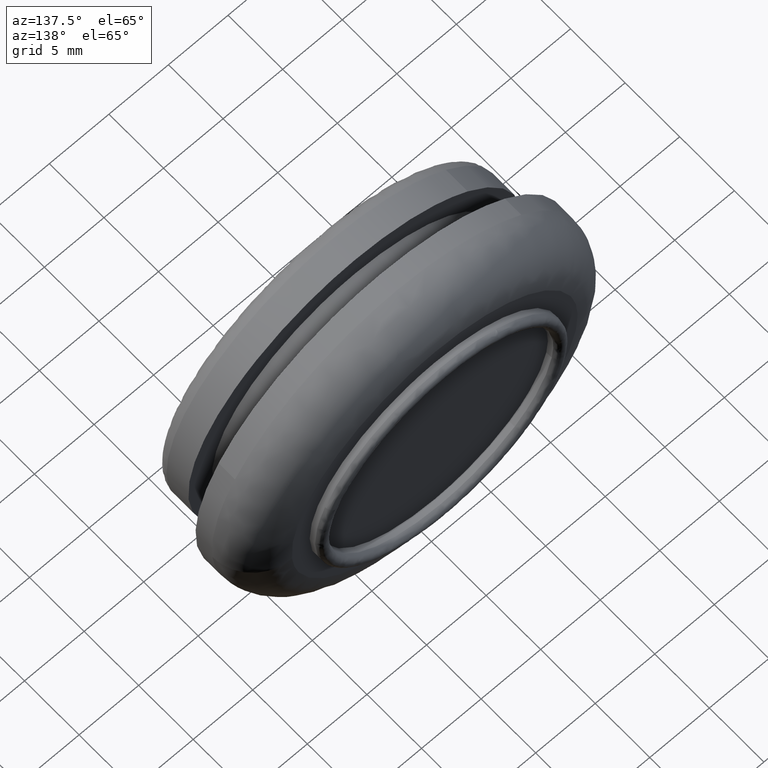
[diagram: clean part render]
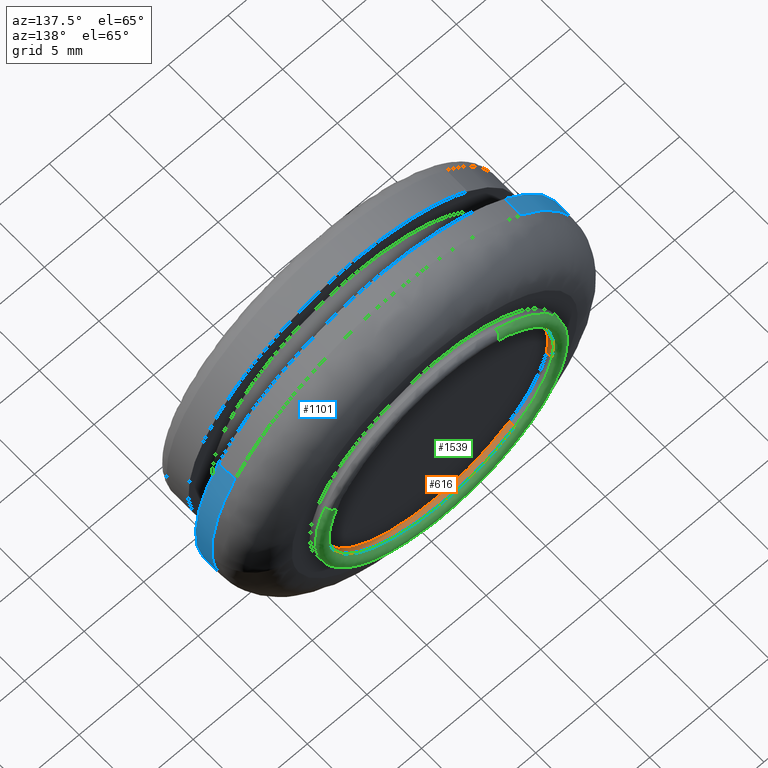
[diagram: same view with three faces highlighted in distinct colors, each labeled with its STEP entity id]
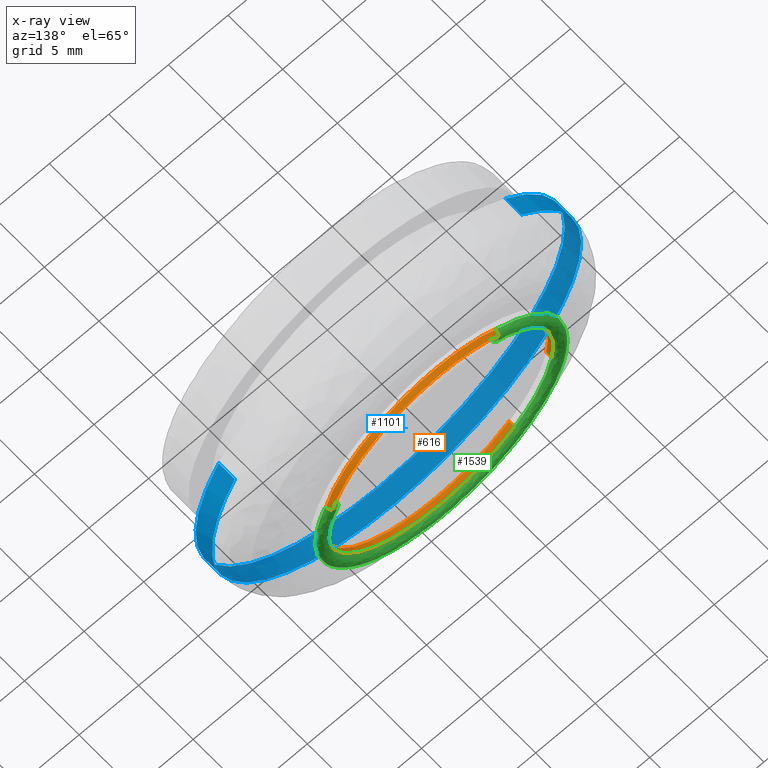
[diagram: x-ray of the same camera — body ghosted, the three highlighted faces saturated]
A machine part, auxiliary view with three faces highlighted in distinct colors.
The next image is the same camera in x-ray (body ghosted, the three faces saturated) — at least one of them is partly hidden behind the body in this view.
Their STEP definitions:

[orange] entity #616 — the highlighted face is a freeform B-spline surface patch.
#446=CARTESIAN_POINT('',(-6.256447145453175,10.812500000000002,-7.148906847634175));
#447=CARTESIAN_POINT('',(-2.870213776890409,10.812500000000002,-10.112407498029965));
#448=CARTESIAN_POINT('',(1.567952255676439,10.812500000000000,-9.369713214603696));
#449=CARTESIAN_POINT('',(10.937665470280134,10.812500000000002,-7.801760958927257));
#450=CARTESIAN_POINT('',(9.369713214603696,10.812500000000000,1.567952255676439));
#451=CARTESIAN_POINT('',(7.801760958927257,10.812500000000002,10.937665470280134));
#452=CARTESIAN_POINT('',(-1.567952255676439,10.812500000000000,9.369713214603696));
#453=CARTESIAN_POINT('',(-10.937665470280134,10.812500000000002,7.801760958927257));
#454=CARTESIAN_POINT('',(-9.369713214603696,10.812500000000000,-1.567952255676439));
#455=CARTESIAN_POINT('',(-6.256447145453175,10.287187499999998,-7.148906847634175));
#456=CARTESIAN_POINT('',(-2.870213776890409,10.287187499999998,-10.112407498029965));
#457=CARTESIAN_POINT('',(1.567952255676439,10.287187500000000,-9.369713214603696));
#458=CARTESIAN_POINT('',(10.937665470280134,10.287187499999998,-7.801760958927257));
#459=CARTESIAN_POINT('',(9.369713214603696,10.287187500000000,1.567952255676439));
#460=CARTESIAN_POINT('',(7.801760958927257,10.287187499999998,10.937665470280134));
#461=CARTESIAN_POINT('',(-1.567952255676439,10.287187500000000,9.369713214603696));
#462=CARTESIAN_POINT('',(-10.937665470280134,10.287187499999998,7.801760958927257));
#463=CARTESIAN_POINT('',(-9.369713214603696,10.287187500000000,-1.567952255676439));
#471=(BOUNDED_SURFACE()B_SPLINE_SURFACE(2,1,((#446,#455),(#447,#456),(#448,#457),(#449,#458),(#450,#459),(#451,#460),(#452,#461),(#453,#462),(#454,#463)),.UNSPECIFIED.,.F.,.F.,.U.)B_SPLINE_SURFACE_WITH_KNOTS((3,2,2,2,3),(2,2),(0.0,8.814464607299462,24.554579977477069,40.294695347654688,56.034810717832293),(0.0,1.0),.UNSPECIFIED.)GEOMETRIC_REPRESENTATION_ITEM()RATIONAL_B_SPLINE_SURFACE(((0.855662221768731,0.855662221768731),(0.835979797464467,0.835979797464467),(1.0,1.0),(0.707106781186548,0.707106781186548),(1.0,1.0),(0.707106781186548,0.707106781186548),(1.0,1.0),(0.707106781186548,0.707106781186548),(1.0,1.0)))REPRESENTATION_ITEM('')SURFACE());
#472=CARTESIAN_POINT('',(-6.256446294445501,10.799999999999841,-7.148907592403042));
#473=VERTEX_POINT('',#472);
#474=CARTESIAN_POINT('',(0.0,10.800000000000001,-9.500000000000000));
#475=VERTEX_POINT('',#474);
#476=CARTESIAN_POINT('',(-6.256446294445501,10.799999999999839,-7.148907592403042));
#477=CARTESIAN_POINT('',(-3.569978358481220,10.800000000000001,-9.500000000000000));
#478=CARTESIAN_POINT('',(0.0,10.800000000000001,-9.500000000000000));
#486=(BOUNDED_CURVE()B_SPLINE_CURVE(2,(#476,#477,#478),.UNSPECIFIED.,.F.,.U.)B_SPLINE_CURVE_WITH_KNOTS((3,3),(0.885034283933024,1.0),.UNSPECIFIED.)CURVE()GEOMETRIC_REPRESENTATION_ITEM()RATIONAL_B_SPLINE_CURVE((0.854497086490057,0.865309285471800,1.0))REPRESENTATION_ITEM(''));
#487=EDGE_CURVE('',#473,#475,#486,.T.);
#488=ORIENTED_EDGE('',*,*,#487,.F.);
#489=CARTESIAN_POINT('',(-6.256446304293370,10.300000000000001,-7.148907583784572));
#490=VERTEX_POINT('',#489);
#491=CARTESIAN_POINT('',(-6.256446294445501,10.799999999999841,-7.148907592403042));
#492=CARTESIAN_POINT('',(-6.256446304293370,10.300000000000001,-7.148907583784572));
#493=QUASI_UNIFORM_CURVE('',1,(#491,#492),.UNSPECIFIED.,.F.,.U.);
#494=EDGE_CURVE('',#473,#490,#493,.T.);
#495=ORIENTED_EDGE('',*,*,#494,.T.);
#496=CARTESIAN_POINT('',(0.0,10.300000000000001,-9.500000000000000));
#497=VERTEX_POINT('',#496);
#498=CARTESIAN_POINT('',(-6.256446304293369,10.300000000000001,-7.148907583784571));
#499=CARTESIAN_POINT('',(-3.569978365948525,10.300000000000001,-9.500000000000000));
#500=CARTESIAN_POINT('',(0.0,10.300000000000001,-9.500000000000000));
#508=(BOUNDED_CURVE()B_SPLINE_CURVE(2,(#498,#499,#500),.UNSPECIFIED.,.F.,.U.)B_SPLINE_CURVE_WITH_KNOTS((3,3),(0.885034283724941,1.0),.UNSPECIFIED.)CURVE()GEOMETRIC_REPRESENTATION_ITEM()RATIONAL_B_SPLINE_CURVE((0.854497086450918,0.865309285228015,1.0))REPRESENTATION_ITEM(''));
#509=EDGE_CURVE('',#490,#497,#508,.T.);
#510=ORIENTED_EDGE('',*,*,#509,.T.);
#511=CARTESIAN_POINT('',(0.0,10.300000000000001,9.500000000000000));
#512=VERTEX_POINT('',#511);
#513=CARTESIAN_POINT('',(0.0,10.300000000000001,-9.500000000000000));
#514=CARTESIAN_POINT('',(9.500000000000000,10.300000000000001,-9.500000000000000));
#515=CARTESIAN_POINT('',(9.500000000000000,10.300000000000001,-3.061516E-016));
#516=CARTESIAN_POINT('',(9.500000000000000,10.300000000000001,9.500000000000000));
#517=CARTESIAN_POINT('',(0.0,10.300000000000001,9.500000000000000));
#525=(BOUNDED_CURVE()B_SPLINE_CURVE(2,(#513,#514,#515,#516,#517),.UNSPECIFIED.,.F.,.U.)B_SPLINE_CURVE_WITH_KNOTS((3,2,3),(0.0,0.250000000000000,0.500000000000000),.UNSPECIFIED.)CURVE()GEOMETRIC_REPRESENTATION_ITEM()RATIONAL_B_SPLINE_CURVE((1.0,0.707106781186548,1.0,0.707106781186548,1.0))REPRESENTATION_ITEM(''));
#526=EDGE_CURVE('',#497,#512,#525,.T.);
#527=ORIENTED_EDGE('',*,*,#526,.T.);
#528=CARTESIAN_POINT('',(-9.369713348044670,10.300000000000001,-1.567951458264204));
#529=VERTEX_POINT('',#528);
#530=CARTESIAN_POINT('',(0.0,10.300000000000001,9.500000000000000));
#531=CARTESIAN_POINT('',(-9.500000000000000,10.300000000000001,9.500000000000000));
#532=CARTESIAN_POINT('',(-9.500000000000000,10.300000000000001,-3.061516E-016));
#533=CARTESIAN_POINT('',(-9.499999999999998,10.300000000000001,-0.789388312266063));
#534=CARTESIAN_POINT('',(-9.369713348044670,10.300000000000001,-1.567951458264205));
#542=(BOUNDED_CURVE()B_SPLINE_CURVE(2,(#530,#531,#532,#533,#534),.UNSPECIFIED.,.F.,.U.)B_SPLINE_CURVE_WITH_KNOTS((3,2,3),(0.500000000000000,0.750000000000000,0.778400489927011),.UNSPECIFIED.)CURVE()GEOMETRIC_REPRESENTATION_ITEM()RATIONAL_B_SPLINE_CURVE((1.0,0.707106781186548,1.0,0.966726756357595,0.941013324082431))REPRESENTATION_ITEM(''));
#543=EDGE_CURVE('',#512,#529,#542,.T.);
#544=ORIENTED_EDGE('',*,*,#543,.T.);
#545=CARTESIAN_POINT('',(-9.369715507766498,10.799999999999979,-1.567938552152767));
#546=VERTEX_POINT('',#545);
#547=CARTESIAN_POINT('',(-9.369715507766498,10.799999999999979,-1.567938552152767));
#548=CARTESIAN_POINT('',(-9.369713348044670,10.300000000000001,-1.567951458264204));
#549=QUASI_UNIFORM_CURVE('',1,(#547,#548),.UNSPECIFIED.,.F.,.U.);
#550=EDGE_CURVE('',#546,#529,#549,.T.);
#551=ORIENTED_EDGE('',*,*,#550,.F.);
#552=CARTESIAN_POINT('',(-4.211950693794776,10.799999999954050,8.515249341800960));
#553=VERTEX_POINT('',#552);
#554=CARTESIAN_POINT('',(-4.211950693794776,10.799999999954053,8.515249341800960));
#555=CARTESIAN_POINT('',(-9.499999999999998,10.799999999999999,5.899588654712832));
#556=CARTESIAN_POINT('',(-9.500000000000000,10.800000000000001,-3.061516E-016));
#557=CARTESIAN_POINT('',(-9.500000000000000,10.800000000000002,-0.789382131348435));
#558=CARTESIAN_POINT('',(-9.369715507766498,10.799999999999986,-1.567938552152767));
#566=(BOUNDED_CURVE()B_SPLINE_CURVE(2,(#554,#555,#556,#557,#558),.UNSPECIFIED.,.F.,.U.)B_SPLINE_CURVE_WITH_KNOTS((3,2,3),(0.575362209163526,0.750000000000000,0.778400274950036),.UNSPECIFIED.)CURVE()GEOMETRIC_REPRESENTATION_ITEM()RATIONAL_B_SPLINE_CURVE((0.876646594193934,0.795399101261739,1.0,0.966727008218788,0.941013713357549))REPRESENTATION_ITEM(''));
#567=EDGE_CURVE('',#553,#546,#566,.T.);
#568=ORIENTED_EDGE('',*,*,#567,.F.);
#569=CARTESIAN_POINT('',(0.0,10.800000000000001,9.500000000000000));
#570=VERTEX_POINT('',#569);
#571=CARTESIAN_POINT('',(0.0,10.800000000000001,9.500000000000000));
#572=CARTESIAN_POINT('',(-2.221092299745306,10.800000000000001,9.500000000000000));
#573=CARTESIAN_POINT('',(-4.211950693794776,10.799999999954053,8.515249341800962));
#581=(BOUNDED_CURVE()B_SPLINE_CURVE(2,(#571,#572,#573),.UNSPECIFIED.,.F.,.U.)B_SPLINE_CURVE_WITH_KNOTS((3,3),(0.500000000000000,0.575362209163525),.UNSPECIFIED.)CURVE()GEOMETRIC_REPRESENTATION_ITEM()RATIONAL_B_SPLINE_CURVE((1.0,0.911707679924810,0.876646594193935))REPRESENTATION_ITEM(''));
#582=EDGE_CURVE('',#570,#553,#581,.T.);
#583=ORIENTED_EDGE('',*,*,#582,.F.);
#584=CARTESIAN_POINT('',(8.742202549975399,10.799999999956080,3.718049834954288));
#585=VERTEX_POINT('',#584);
#586=CARTESIAN_POINT('',(8.742202549975399,10.799999999956080,3.718049834954288));
#587=CARTESIAN_POINT('',(6.283145037411986,10.800000000000001,9.499999999999998));
#588=CARTESIAN_POINT('',(0.0,10.800000000000001,9.500000000000000));
#596=(BOUNDED_CURVE()B_SPLINE_CURVE(2,(#586,#587,#588),.UNSPECIFIED.,.F.,.U.)B_SPLINE_CURVE_WITH_KNOTS((3,3),(0.316449865337022,0.500000000000000),.UNSPECIFIED.)CURVE()GEOMETRIC_REPRESENTATION_ITEM()RATIONAL_B_SPLINE_CURVE((0.885683713610749,0.784957640979671,1.0))REPRESENTATION_ITEM(''));
#597=EDGE_CURVE('',#585,#570,#596,.T.);
#598=ORIENTED_EDGE('',*,*,#597,.F.);
#599=CARTESIAN_POINT('',(0.0,10.800000000000001,-9.500000000000000));
#600=CARTESIAN_POINT('',(9.500000000000000,10.800000000000001,-9.500000000000000));
#601=CARTESIAN_POINT('',(9.500000000000000,10.800000000000001,-3.061516E-016));
#602=CARTESIAN_POINT('',(9.500000000000000,10.800000000000001,1.936250479365620));
#603=CARTESIAN_POINT('',(8.742202549975399,10.799999999956082,3.718049834954288));
#611=(BOUNDED_CURVE()B_SPLINE_CURVE(2,(#599,#600,#601,#602,#603),.UNSPECIFIED.,.F.,.U.)B_SPLINE_CURVE_WITH_KNOTS((3,2,3),(0.0,0.250000000000000,0.316449865337022),.UNSPECIFIED.)CURVE()GEOMETRIC_REPRESENTATION_ITEM()RATIONAL_B_SPLINE_CURVE((1.0,0.707106781186548,1.0,0.922149140206877,0.885683713610749))REPRESENTATION_ITEM(''));
#612=EDGE_CURVE('',#475,#585,#611,.T.);
#613=ORIENTED_EDGE('',*,*,#612,.F.);
#614=EDGE_LOOP('',(#488,#495,#510,#527,#544,#551,#568,#583,#598,#613));
#615=FACE_OUTER_BOUND('',#614,.T.);
#616=ADVANCED_FACE('',(#615),#471,.F.);

[blue] entity #1101 — the highlighted face is a freeform B-spline surface patch.
#904=CARTESIAN_POINT('',(13.561671013328940,6.800000000000089,7.505403342008027));
#905=VERTEX_POINT('',#904);
#921=CARTESIAN_POINT('',(-10.471647587331150,6.800000000010773,11.427799298496430));
#922=VERTEX_POINT('',#921);
#936=CARTESIAN_POINT('',(-10.471647604114120,5.300000000000000,11.427799283118780));
#937=VERTEX_POINT('',#936);
#938=CARTESIAN_POINT('',(-10.471647587331150,6.800000000010773,11.427799298496430));
#939=CARTESIAN_POINT('',(-10.471647604114120,5.300000000000000,11.427799283118780));
#940=QUASI_UNIFORM_CURVE('',1,(#938,#939),.UNSPECIFIED.,.F.,.U.);
#941=EDGE_CURVE('',#922,#937,#940,.T.);
#958=CARTESIAN_POINT('',(13.561670903961989,5.300000000000001,7.505403539625551));
#959=VERTEX_POINT('',#958);
#973=CARTESIAN_POINT('',(13.561671013328940,6.800000000000089,7.505403342008027));
#974=CARTESIAN_POINT('',(13.561670903961989,5.300000000000001,7.505403539625551));
#975=QUASI_UNIFORM_CURVE('',1,(#973,#974),.UNSPECIFIED.,.F.,.U.);
#976=EDGE_CURVE('',#905,#959,#975,.T.);
#981=CARTESIAN_POINT('',(-10.471648218042731,6.837500000041609,11.427798720556920));
#982=CARTESIAN_POINT('',(-21.899446938599649,6.837500000041609,0.956150502514186));
#983=CARTESIAN_POINT('',(-11.427798720556920,6.837500000041609,-10.471648218042731));
#984=CARTESIAN_POINT('',(-0.956150502514186,6.837500000041609,-21.899446938599649));
#985=CARTESIAN_POINT('',(10.471648218042731,6.837500000041609,-11.427798720556920));
#986=CARTESIAN_POINT('',(19.474352396322324,6.837500000041609,-3.178340231542414));
#987=CARTESIAN_POINT('',(13.561669625368522,6.837500000041610,7.505405849942879));
#988=CARTESIAN_POINT('',(-10.471648218042731,5.261562499998958,11.427798720556920));
#989=CARTESIAN_POINT('',(-21.899446938599649,5.261562499998959,0.956150502514186));
#990=CARTESIAN_POINT('',(-11.427798720556920,5.261562499998958,-10.471648218042731));
#991=CARTESIAN_POINT('',(-0.956150502514186,5.261562499998959,-21.899446938599649));
#992=CARTESIAN_POINT('',(10.471648218042731,5.261562499998958,-11.427798720556920));
#993=CARTESIAN_POINT('',(19.474352396322324,5.261562499998957,-3.178340231542414));
#994=CARTESIAN_POINT('',(13.561669625368522,5.261562499998958,7.505405849942879));
#1002=(BOUNDED_SURFACE()B_SPLINE_SURFACE(2,1,((#981,#988),(#982,#989),(#983,#990),(#984,#991),(#985,#992),(#986,#993),(#987,#994)),.UNSPECIFIED.,.F.,.F.,.U.)B_SPLINE_SURFACE_WITH_KNOTS((3,2,2,3),(2,2),(0.0,25.681240867131891,51.362481734263781,72.934724062654567),(0.0,1.0),.UNSPECIFIED.)GEOMETRIC_REPRESENTATION_ITEM()RATIONAL_B_SPLINE_SURFACE(((1.0,1.0),(0.707106781186548,0.707106781186548),(1.0,1.0),(0.707106781186548,0.707106781186548),(1.0,1.0),(0.753969696196700,0.753969696196700),(0.921270302782944,0.921270302782944)))REPRESENTATION_ITEM('')SURFACE());
#1003=CARTESIAN_POINT('',(15.462267944526319,6.800000000040594,-1.080865399424841));
#1004=VERTEX_POINT('',#1003);
#1005=CARTESIAN_POINT('',(15.462267944526316,6.800000000040594,-1.080865399424841));
#1006=CARTESIAN_POINT('',(15.499999999999998,6.800000000000000,-0.541091296063544));
#1007=CARTESIAN_POINT('',(15.500000000000000,6.800000000000000,-3.061516E-016));
#1008=CARTESIAN_POINT('',(15.500000000000004,6.800000000000001,4.002995964952248));
#1009=CARTESIAN_POINT('',(13.561671013328942,6.800000000000089,7.505403342008027));
#1017=(BOUNDED_CURVE()B_SPLINE_CURVE(2,(#1005,#1006,#1007,#1008,#1009),.UNSPECIFIED.,.F.,.U.)B_SPLINE_CURVE_WITH_KNOTS((3,2,3),(0.237833686535012,0.250000000000000,0.332484260513294),.UNSPECIFIED.)CURVE()GEOMETRIC_REPRESENTATION_ITEM()RATIONAL_B_SPLINE_CURVE((0.972879876386808,0.985746277152585,1.0,0.903363677747256,0.870495160132448))REPRESENTATION_ITEM(''));
#1018=EDGE_CURVE('',#1004,#905,#1017,.T.);
#1019=ORIENTED_EDGE('',*,*,#1018,.T.);
#1020=ORIENTED_EDGE('',*,*,#976,.T.);
#1021=CARTESIAN_POINT('',(0.0,5.300000000000000,-15.500000000000000));
#1022=VERTEX_POINT('',#1021);
#1023=CARTESIAN_POINT('',(0.0,5.300000000000000,-15.500000000000000));
#1024=CARTESIAN_POINT('',(15.500000000000004,5.300000000000000,-15.500000000000004));
#1025=CARTESIAN_POINT('',(15.500000000000000,5.300000000000000,-3.061516E-016));
#1026=CARTESIAN_POINT('',(15.500000000000004,5.300000000000001,4.002996085415624));
#1027=CARTESIAN_POINT('',(13.561670903961998,5.300000000000001,7.505403539625551));
#1035=(BOUNDED_CURVE()B_SPLINE_CURVE(2,(#1023,#1024,#1025,#1026,#1027),.UNSPECIFIED.,.F.,.U.)B_SPLINE_CURVE_WITH_KNOTS((3,2,3),(0.0,0.250000000000000,0.332484262755645),.UNSPECIFIED.)CURVE()GEOMETRIC_REPRESENTATION_ITEM()RATIONAL_B_SPLINE_CURVE((1.0,0.707106781186548,1.0,0.903363675120178,0.870495158345373))REPRESENTATION_ITEM(''));
#1036=EDGE_CURVE('',#1022,#959,#1035,.T.);
#1037=ORIENTED_EDGE('',*,*,#1036,.F.);
#1038=CARTESIAN_POINT('',(-10.471647604114121,5.300000000000000,11.427799283118784));
#1039=CARTESIAN_POINT('',(-15.500000000000002,5.300000000000000,6.820164222738222));
#1040=CARTESIAN_POINT('',(-15.500000000000000,5.300000000000000,-3.061516E-016));
#1041=CARTESIAN_POINT('',(-15.500000000000004,5.300000000000000,-15.500000000000004));
#1042=CARTESIAN_POINT('',(0.0,5.300000000000000,-15.500000000000000));
#1050=(BOUNDED_CURVE()B_SPLINE_CURVE(2,(#1038,#1039,#1040,#1041,#1042),.UNSPECIFIED.,.F.,.U.)B_SPLINE_CURVE_WITH_KNOTS((3,2,3),(0.618415192864190,0.750000000000000,1.0),.UNSPECIFIED.)CURVE()GEOMETRIC_REPRESENTATION_ITEM()RATIONAL_B_SPLINE_CURVE((0.853959782840026,0.845838809164181,1.0,0.707106781186548,1.0))REPRESENTATION_ITEM(''));
#1051=EDGE_CURVE('',#937,#1022,#1050,.T.);
#1052=ORIENTED_EDGE('',*,*,#1051,.F.);
#1053=ORIENTED_EDGE('',*,*,#941,.F.);
#1054=CARTESIAN_POINT('',(-15.498776185159040,6.800000000040592,0.194773618200460));
#1055=VERTEX_POINT('',#1054);
#1056=CARTESIAN_POINT('',(-10.471647587331153,6.800000000010773,11.427799298496431));
#1057=CARTESIAN_POINT('',(-15.414530458556596,6.800000000022814,6.898482637801852));
#1058=CARTESIAN_POINT('',(-15.498776185159040,6.800000000040592,0.194773618200460));
#1066=(BOUNDED_CURVE()B_SPLINE_CURVE(2,(#1056,#1057,#1058),.UNSPECIFIED.,.F.,.U.)B_SPLINE_CURVE_WITH_KNOTS((3,3),(0.618415192420786,0.747784295921536),.UNSPECIFIED.)CURVE()GEOMETRIC_REPRESENTATION_ITEM()RATIONAL_B_SPLINE_CURVE((0.853959782894757,0.845975554490198,0.994854295643570))REPRESENTATION_ITEM(''));
#1067=EDGE_CURVE('',#922,#1055,#1066,.T.);
#1068=ORIENTED_EDGE('',*,*,#1067,.T.);
#1069=CARTESIAN_POINT('',(0.0,6.800000000000000,-15.500000000000000));
#1070=VERTEX_POINT('',#1069);
#1071=CARTESIAN_POINT('',(-15.498776185159040,6.800000000040592,0.194773618200460));
#1072=CARTESIAN_POINT('',(-15.499999999999996,6.799999999999999,0.097390653882792));
#1073=CARTESIAN_POINT('',(-15.500000000000000,6.800000000000000,-3.061516E-016));
#1074=CARTESIAN_POINT('',(-15.500000000000004,6.800000000000002,-15.500000000000004));
#1075=CARTESIAN_POINT('',(0.0,6.800000000000000,-15.500000000000000));
#1083=(BOUNDED_CURVE()B_SPLINE_CURVE(2,(#1071,#1072,#1073,#1074,#1075),.UNSPECIFIED.,.F.,.U.)B_SPLINE_CURVE_WITH_KNOTS((3,2,3),(0.747784295921535,0.750000000000000,1.0),.UNSPECIFIED.)CURVE()GEOMETRIC_REPRESENTATION_ITEM()RATIONAL_B_SPLINE_CURVE((0.994854295643568,0.997404141202082,1.0,0.707106781186548,1.0))REPRESENTATION_ITEM(''));
#1084=EDGE_CURVE('',#1055,#1070,#1083,.T.);
#1085=ORIENTED_EDGE('',*,*,#1084,.T.);
#1086=CARTESIAN_POINT('',(0.0,6.800000000000000,-15.500000000000000));
#1087=CARTESIAN_POINT('',(14.454321132622306,6.800000000000001,-15.500000000000004));
#1088=CARTESIAN_POINT('',(15.462267944526319,6.800000000040594,-1.080865399424841));
#1096=(BOUNDED_CURVE()B_SPLINE_CURVE(2,(#1086,#1087,#1088),.UNSPECIFIED.,.F.,.U.)B_SPLINE_CURVE_WITH_KNOTS((3,3),(0.0,0.237833686535012),.UNSPECIFIED.)CURVE()GEOMETRIC_REPRESENTATION_ITEM()RATIONAL_B_SPLINE_CURVE((1.0,0.721360504033962,0.972879876386808))REPRESENTATION_ITEM(''));
#1097=EDGE_CURVE('',#1070,#1004,#1096,.T.);
#1098=ORIENTED_EDGE('',*,*,#1097,.T.);
#1099=EDGE_LOOP('',(#1019,#1020,#1037,#1052,#1053,#1068,#1085,#1098));
#1100=FACE_OUTER_BOUND('',#1099,.T.);
#1101=ADVANCED_FACE('',(#1100),#1002,.T.);

[green] entity #1539 — the highlighted face is a freeform B-spline surface patch.
#472=CARTESIAN_POINT('',(-6.256446294445501,10.799999999999841,-7.148907592403042));
#473=VERTEX_POINT('',#472);
#474=CARTESIAN_POINT('',(0.0,10.800000000000001,-9.500000000000000));
#475=VERTEX_POINT('',#474);
#476=CARTESIAN_POINT('',(-6.256446294445501,10.799999999999839,-7.148907592403042));
#477=CARTESIAN_POINT('',(-3.569978358481220,10.800000000000001,-9.500000000000000));
#478=CARTESIAN_POINT('',(0.0,10.800000000000001,-9.500000000000000));
#486=(BOUNDED_CURVE()B_SPLINE_CURVE(2,(#476,#477,#478),.UNSPECIFIED.,.F.,.U.)B_SPLINE_CURVE_WITH_KNOTS((3,3),(0.885034283933024,1.0),.UNSPECIFIED.)CURVE()GEOMETRIC_REPRESENTATION_ITEM()RATIONAL_B_SPLINE_CURVE((0.854497086490057,0.865309285471800,1.0))REPRESENTATION_ITEM(''));
#487=EDGE_CURVE('',#473,#475,#486,.T.);
#545=CARTESIAN_POINT('',(-9.369715507766498,10.799999999999979,-1.567938552152767));
#546=VERTEX_POINT('',#545);
#552=CARTESIAN_POINT('',(-4.211950693794776,10.799999999954050,8.515249341800960));
#553=VERTEX_POINT('',#552);
#554=CARTESIAN_POINT('',(-4.211950693794776,10.799999999954053,8.515249341800960));
#555=CARTESIAN_POINT('',(-9.499999999999998,10.799999999999999,5.899588654712832));
#556=CARTESIAN_POINT('',(-9.500000000000000,10.800000000000001,-3.061516E-016));
#557=CARTESIAN_POINT('',(-9.500000000000000,10.800000000000002,-0.789382131348435));
#558=CARTESIAN_POINT('',(-9.369715507766498,10.799999999999986,-1.567938552152767));
#566=(BOUNDED_CURVE()B_SPLINE_CURVE(2,(#554,#555,#556,#557,#558),.UNSPECIFIED.,.F.,.U.)B_SPLINE_CURVE_WITH_KNOTS((3,2,3),(0.575362209163526,0.750000000000000,0.778400274950036),.UNSPECIFIED.)CURVE()GEOMETRIC_REPRESENTATION_ITEM()RATIONAL_B_SPLINE_CURVE((0.876646594193934,0.795399101261739,1.0,0.966727008218788,0.941013713357549))REPRESENTATION_ITEM(''));
#567=EDGE_CURVE('',#553,#546,#566,.T.);
#584=CARTESIAN_POINT('',(8.742202549975399,10.799999999956080,3.718049834954288));
#585=VERTEX_POINT('',#584);
#599=CARTESIAN_POINT('',(0.0,10.800000000000001,-9.500000000000000));
#600=CARTESIAN_POINT('',(9.500000000000000,10.800000000000001,-9.500000000000000));
#601=CARTESIAN_POINT('',(9.500000000000000,10.800000000000001,-3.061516E-016));
#602=CARTESIAN_POINT('',(9.500000000000000,10.800000000000001,1.936250479365620));
#603=CARTESIAN_POINT('',(8.742202549975399,10.799999999956082,3.718049834954288));
#611=(BOUNDED_CURVE()B_SPLINE_CURVE(2,(#599,#600,#601,#602,#603),.UNSPECIFIED.,.F.,.U.)B_SPLINE_CURVE_WITH_KNOTS((3,2,3),(0.0,0.250000000000000,0.316449865337022),.UNSPECIFIED.)CURVE()GEOMETRIC_REPRESENTATION_ITEM()RATIONAL_B_SPLINE_CURVE((1.0,0.707106781186548,1.0,0.922149140206877,0.885683713610749))REPRESENTATION_ITEM(''));
#612=EDGE_CURVE('',#475,#585,#611,.T.);
#635=CARTESIAN_POINT('',(-9.369715507766498,10.799999999999985,-1.567938552152767));
#636=CARTESIAN_POINT('',(-8.809717689544412,10.799999999999999,-4.914383624635542));
#637=CARTESIAN_POINT('',(-6.256446294445501,10.799999999999839,-7.148907592403042));
#645=(BOUNDED_CURVE()B_SPLINE_CURVE(2,(#635,#636,#637),.UNSPECIFIED.,.F.,.U.)B_SPLINE_CURVE_WITH_KNOTS((3,3),(0.778400274950036,0.885034283933024),.UNSPECIFIED.)CURVE()GEOMETRIC_REPRESENTATION_ITEM()RATIONAL_B_SPLINE_CURVE((0.941013713357549,0.844468460889418,0.854497086490057))REPRESENTATION_ITEM(''));
#646=EDGE_CURVE('',#546,#473,#645,.T.);
#692=CARTESIAN_POINT('',(-6.915019658882960,10.799999999999841,-7.901424119566094));
#693=VERTEX_POINT('',#692);
#694=CARTESIAN_POINT('',(0.0,10.800000000000001,-10.500000000000000));
#695=VERTEX_POINT('',#694);
#696=CARTESIAN_POINT('',(-6.915019658882960,10.799999999999841,-7.901424119566094));
#697=CARTESIAN_POINT('',(-3.945765607405795,10.800000000000001,-10.500000000000000));
#698=CARTESIAN_POINT('',(0.0,10.800000000000001,-10.500000000000000));
#706=(BOUNDED_CURVE()B_SPLINE_CURVE(2,(#696,#697,#698),.UNSPECIFIED.,.F.,.U.)B_SPLINE_CURVE_WITH_KNOTS((3,3),(0.885034282589348,1.0),.UNSPECIFIED.)CURVE()GEOMETRIC_REPRESENTATION_ITEM()RATIONAL_B_SPLINE_CURVE((0.854497086237319,0.865309283897585,1.0))REPRESENTATION_ITEM(''));
#707=EDGE_CURVE('',#693,#695,#706,.T.);
#709=CARTESIAN_POINT('',(9.662434397341063,10.800000000181161,4.109423501791973));
#710=VERTEX_POINT('',#709);
#711=CARTESIAN_POINT('',(0.0,10.800000000000001,-10.500000000000000));
#712=CARTESIAN_POINT('',(10.500000000000000,10.800000000000001,-10.500000000000000));
#713=CARTESIAN_POINT('',(10.500000000000000,10.800000000000001,-3.061516E-016));
#714=CARTESIAN_POINT('',(10.500000000000000,10.799999999999999,2.140066319299294));
#715=CARTESIAN_POINT('',(9.662434397341063,10.800000000181157,4.109423501791972));
#723=(BOUNDED_CURVE()B_SPLINE_CURVE(2,(#711,#712,#713,#714,#715),.UNSPECIFIED.,.F.,.U.)B_SPLINE_CURVE_WITH_KNOTS((3,2,3),(0.0,0.250000000000000,0.316449865337035),.UNSPECIFIED.)CURVE()GEOMETRIC_REPRESENTATION_ITEM()RATIONAL_B_SPLINE_CURVE((1.0,0.707106781186547,1.0,0.922149140206862,0.885683713610735))REPRESENTATION_ITEM(''));
#724=EDGE_CURVE('',#695,#710,#723,.T.);
#741=CARTESIAN_POINT('',(-4.655313924719978,10.800000000181360,9.411591377780288));
#742=VERTEX_POINT('',#741);
#756=CARTESIAN_POINT('',(-10.356001106936491,10.799999999999949,-1.732986172171446));
#757=VERTEX_POINT('',#756);
#758=CARTESIAN_POINT('',(-4.655313924719978,10.800000000181361,9.411591377780288));
#759=CARTESIAN_POINT('',(-10.499999999999998,10.800000000000001,6.520597986788738));
#760=CARTESIAN_POINT('',(-10.500000000000000,10.800000000000001,-3.061516E-016));
#761=CARTESIAN_POINT('',(-10.500000000000002,10.800000000000004,-0.872475730822447));
#762=CARTESIAN_POINT('',(-10.356001106936493,10.799999999999947,-1.732986172171447));
#770=(BOUNDED_CURVE()B_SPLINE_CURVE(2,(#758,#759,#760,#761,#762),.UNSPECIFIED.,.F.,.U.)B_SPLINE_CURVE_WITH_KNOTS((3,2,3),(0.575362209163507,0.750000000000000,0.778400298348064),.UNSPECIFIED.)CURVE()GEOMETRIC_REPRESENTATION_ITEM()RATIONAL_B_SPLINE_CURVE((0.876646594193951,0.795399101261717,1.0,0.966726980806293,0.941013670988923))REPRESENTATION_ITEM(''));
#771=EDGE_CURVE('',#742,#757,#770,.T.);
#855=CARTESIAN_POINT('',(-10.356001106936493,10.799999999999955,-1.732986172171446));
#856=CARTESIAN_POINT('',(-9.737055775822462,10.800000000000001,-5.431687660490237));
#857=CARTESIAN_POINT('',(-6.915019658882960,10.799999999999841,-7.901424119566094));
#865=(BOUNDED_CURVE()B_SPLINE_CURVE(2,(#855,#856,#857),.UNSPECIFIED.,.F.,.U.)B_SPLINE_CURVE_WITH_KNOTS((3,3),(0.778400298348064,0.885034282589348),.UNSPECIFIED.)CURVE()GEOMETRIC_REPRESENTATION_ITEM()RATIONAL_B_SPLINE_CURVE((0.941013670988923,0.844468464306486,0.854497086237319))REPRESENTATION_ITEM(''));
#866=EDGE_CURVE('',#757,#693,#865,.T.);
#1438=CARTESIAN_POINT('',(-4.214690026686671,10.721639579646906,8.520787417698854));
#1439=CARTESIAN_POINT('',(-12.261324935253835,10.721639579646904,4.540630392881798));
#1440=CARTESIAN_POINT('',(-8.747888229782280,10.721639579646904,-3.720467948780612));
#1441=CARTESIAN_POINT('',(-5.027420281001668,10.721639579646903,-12.468356178562889));
#1442=CARTESIAN_POINT('',(3.720467948780611,10.721639579646904,-8.747888229782280));
#1443=CARTESIAN_POINT('',(12.468356178562889,10.721639579646903,-5.027420281001668));
#1444=CARTESIAN_POINT('',(8.747888229782280,10.721639579646904,3.720467948780611));
#1445=CARTESIAN_POINT('',(-4.207668183237786,10.821447425092382,8.506591442448128));
#1446=CARTESIAN_POINT('',(-12.240897073744181,10.821447425092382,4.533065519646474));
#1447=CARTESIAN_POINT('',(-8.733313895425789,10.821447425092384,-3.714269499232123));
#1448=CARTESIAN_POINT('',(-5.019044396193667,10.821447425092378,-12.447583394657912));
#1449=CARTESIAN_POINT('',(3.714269499232122,10.821447425092384,-8.733313895425789));
#1450=CARTESIAN_POINT('',(12.447583394657912,10.821447425092378,-5.019044396193670));
#1451=CARTESIAN_POINT('',(8.733313895425789,10.821447425092384,3.714269499232122));
#1452=CARTESIAN_POINT('',(-4.218382960277573,10.919571796058854,8.528253376494519));
#1453=CARTESIAN_POINT('',(-12.272068372715582,10.919571796058850,4.544608917137571));
#1454=CARTESIAN_POINT('',(-8.755553175505135,10.919571796058850,-3.723727842384869));
#1455=CARTESIAN_POINT('',(-5.031825333120266,10.919571796058850,-12.479281017890003));
#1456=CARTESIAN_POINT('',(3.723727842384868,10.919571796058850,-8.755553175505135));
#1457=CARTESIAN_POINT('',(12.479281017890001,10.919571796058850,-5.031825333120266));
#1458=CARTESIAN_POINT('',(8.755553175505135,10.919571796058850,3.723727842384867));
#1459=CARTESIAN_POINT('',(-4.267895238959762,11.372998048678534,8.628351746373564));
#1460=CARTESIAN_POINT('',(-12.416108891321507,11.372998048678532,4.597950196325763));
#1461=CARTESIAN_POINT('',(-8.858319423359934,11.372998048678532,-3.767434222864051));
#1462=CARTESIAN_POINT('',(-5.090885200495882,11.372998048678532,-12.625753646223982));
#1463=CARTESIAN_POINT('',(3.767434222864051,11.372998048678532,-8.858319423359934));
#1464=CARTESIAN_POINT('',(12.625753646223982,11.372998048678532,-5.090885200495884));
#1465=CARTESIAN_POINT('',(8.858319423359934,11.372998048678532,3.767434222864051));
#1466=CARTESIAN_POINT('',(-4.471837301667795,11.292518611120155,9.040658926939400));
#1467=CARTESIAN_POINT('',(-13.009414658292680,11.292518611120155,4.817663988432814));
#1468=CARTESIAN_POINT('',(-9.281615646480670,11.292518611120149,-3.947461675158075));
#1469=CARTESIAN_POINT('',(-5.334153971322595,11.292518611120153,-13.229077321638744));
#1470=CARTESIAN_POINT('',(3.947461675158074,11.292518611120149,-9.281615646480670));
#1471=CARTESIAN_POINT('',(13.229077321638744,11.292518611120153,-5.334153971322595));
#1472=CARTESIAN_POINT('',(9.281615646480670,11.292518611120149,3.947461675158074));
#1473=CARTESIAN_POINT('',(-4.675779364375829,11.212039173561772,9.452966107505244));
#1474=CARTESIAN_POINT('',(-13.602720425263851,11.212039173561774,5.037377780539866));
#1475=CARTESIAN_POINT('',(-9.704911869601409,11.212039173561772,-4.127489127452100));
#1476=CARTESIAN_POINT('',(-5.577422742149309,11.212039173561772,-13.832400997053508));
#1477=CARTESIAN_POINT('',(4.127489127452100,11.212039173561772,-9.704911869601409));
#1478=CARTESIAN_POINT('',(13.832400997053508,11.212039173561772,-5.577422742149310));
#1479=CARTESIAN_POINT('',(9.704911869601409,11.212039173561772,4.127489127452100));
#1480=CARTESIAN_POINT('',(-4.654094671658699,10.747631623423882,9.409126428741011));
#1481=CARTESIAN_POINT('',(-13.539635581101576,10.747631623423874,5.014016115936243));
#1482=CARTESIAN_POINT('',(-9.659903751095545,10.747631623423869,-4.108347220521249));
#1483=CARTESIAN_POINT('',(-5.551556530574294,10.747631623423874,-13.768250971616792));
#1484=CARTESIAN_POINT('',(4.108347220521248,10.747631623423869,-9.659903751095545));
#1485=CARTESIAN_POINT('',(13.768250971616792,10.747631623423874,-5.551556530574296));
#1486=CARTESIAN_POINT('',(9.659903751095545,10.747631623423869,4.108347220521248));
#1494=(BOUNDED_SURFACE()B_SPLINE_SURFACE(2,2,((#1438,#1445,#1452,#1459,#1466,#1473,#1480),(#1439,#1446,#1453,#1460,#1467,#1474,#1481),(#1440,#1447,#1454,#1461,#1468,#1475,#1482),(#1441,#1448,#1455,#1462,#1469,#1476,#1483),(#1442,#1449,#1456,#1463,#1470,#1477,#1484),(#1443,#1450,#1457,#1464,#1471,#1478,#1485),(#1444,#1451,#1458,#1465,#1472,#1479,#1486)),.UNSPECIFIED.,.F.,.F.,.U.)B_SPLINE_SURFACE_WITH_KNOTS((3,2,2,3),(3,2,2,3),(0.0,16.696716724686009,34.089129979567282,51.481543234448537),(0.0,0.216304510933380,1.005012699794412,1.793720888655443),.UNSPECIFIED.)GEOMETRIC_REPRESENTATION_ITEM()RATIONAL_B_SPLINE_SURFACE(((0.872766012707374,0.905345949496249,0.977505800795127,0.714390318918062,0.977505800795127,0.714390318918062,0.977505800795127),(0.641800647457569,0.665758757902731,0.718822509939086,0.525336874423820,0.718822509939086,0.525336874423820,0.718822509939086),(0.892849957511705,0.926179618330468,1.0,0.730829748874083,1.0,0.730829748874083,1.0),(0.631340259538647,0.654907888718242,0.707106781186548,0.516774671321726,0.707106781186548,0.516774671321726,0.707106781186548),(0.892849957511705,0.926179618330468,1.0,0.730829748874083,1.0,0.730829748874083,1.0),(0.631340259538647,0.654907888718242,0.707106781186548,0.516774671321726,0.707106781186548,0.516774671321726,0.707106781186548),(0.892849957511705,0.926179618330468,1.0,0.730829748874083,1.0,0.730829748874083,1.0)))REPRESENTATION_ITEM('')SURFACE());
#1495=ORIENTED_EDGE('',*,*,#567,.T.);
#1496=ORIENTED_EDGE('',*,*,#646,.T.);
#1497=ORIENTED_EDGE('',*,*,#487,.T.);
#1498=ORIENTED_EDGE('',*,*,#612,.T.);
#1499=CARTESIAN_POINT('',(8.742202549975399,10.799999999956082,3.718049834954287));
#1500=CARTESIAN_POINT('',(8.742202549965958,10.860666034345041,3.718049834949250));
#1501=CARTESIAN_POINT('',(8.755553175505135,10.919571796058850,3.723727842384870));
#1502=CARTESIAN_POINT('',(8.858319423359932,11.372998048678532,3.767434222864051));
#1503=CARTESIAN_POINT('',(9.281615646480670,11.292518611120149,3.947461675158076));
#1504=CARTESIAN_POINT('',(9.662434397061494,11.220115227427101,4.109423501671480));
#1505=CARTESIAN_POINT('',(9.662434397341063,10.800000000181161,4.109423501791973));
#1513=(BOUNDED_CURVE()B_SPLINE_CURVE(2,(#1499,#1500,#1501,#1502,#1503,#1504,#1505),.UNSPECIFIED.,.F.,.U.)B_SPLINE_CURVE_WITH_KNOTS((3,2,2,3),(-4.339286584676316,-4.0,-2.0,-0.150748352822883),.UNSPECIFIED.)CURVE()GEOMETRIC_REPRESENTATION_ITEM()RATIONAL_B_SPLINE_CURVE((0.924166963550913,0.954337072399511,1.0,0.730829748874083,1.0,0.751118234867160,0.962481483858573))REPRESENTATION_ITEM(''));
#1514=EDGE_CURVE('',#585,#710,#1513,.T.);
#1515=ORIENTED_EDGE('',*,*,#1514,.T.);
#1516=ORIENTED_EDGE('',*,*,#724,.F.);
#1517=ORIENTED_EDGE('',*,*,#707,.F.);
#1518=ORIENTED_EDGE('',*,*,#866,.F.);
#1519=ORIENTED_EDGE('',*,*,#771,.F.);
#1520=CARTESIAN_POINT('',(-4.211950693794777,10.799999999954053,8.515249341800960));
#1521=CARTESIAN_POINT('',(-4.211950693788349,10.860666034343035,8.515249341791696));
#1522=CARTESIAN_POINT('',(-4.218382960277573,10.919571796058852,8.528253376494517));
#1523=CARTESIAN_POINT('',(-4.267895238959762,11.372998048678530,8.628351746373561));
#1524=CARTESIAN_POINT('',(-4.471837301667793,11.292518611120155,9.040658926939402));
#1525=CARTESIAN_POINT('',(-4.655313924583777,11.220115227427161,9.411591377507639));
#1526=CARTESIAN_POINT('',(-4.655313924719980,10.800000000181367,9.411591377780288));
#1534=(BOUNDED_CURVE()B_SPLINE_CURVE(2,(#1520,#1521,#1522,#1523,#1524,#1525,#1526),.UNSPECIFIED.,.F.,.U.)B_SPLINE_CURVE_WITH_KNOTS((3,2,2,3),(-4.339286584687305,-4.0,-2.0,-0.150748352824031),.UNSPECIFIED.)CURVE()GEOMETRIC_REPRESENTATION_ITEM()RATIONAL_B_SPLINE_CURVE((0.903378567772326,0.932870024182915,0.977505800795127,0.714390318918062,0.977505800795127,0.734222431665797,0.940831233629400))REPRESENTATION_ITEM(''));
#1535=EDGE_CURVE('',#553,#742,#1534,.T.);
#1536=ORIENTED_EDGE('',*,*,#1535,.F.);
#1537=EDGE_LOOP('',(#1495,#1496,#1497,#1498,#1515,#1516,#1517,#1518,#1519,#1536));
#1538=FACE_OUTER_BOUND('',#1537,.T.);
#1539=ADVANCED_FACE('',(#1538),#1494,.T.);